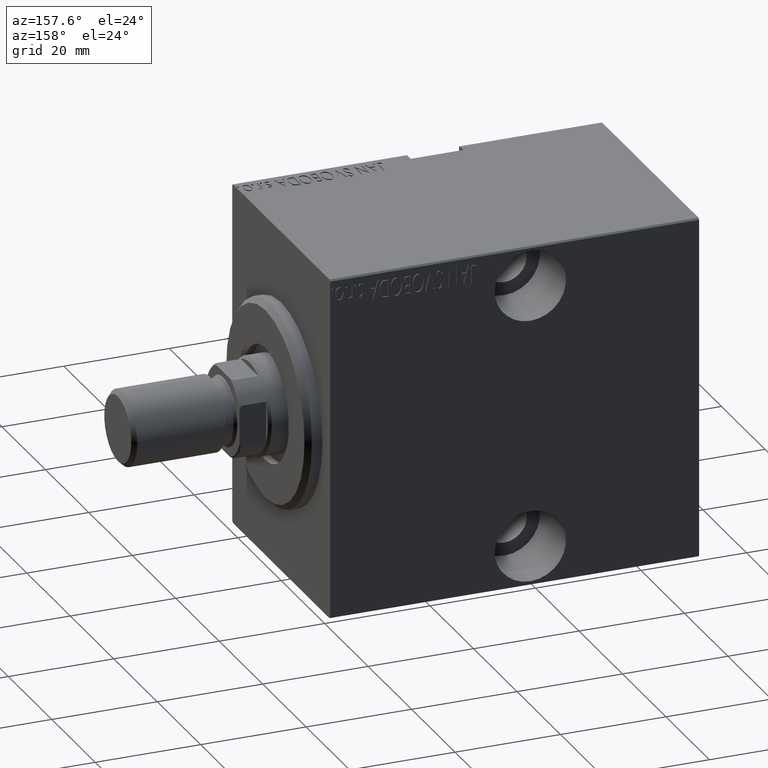
[diagram: clean part render]
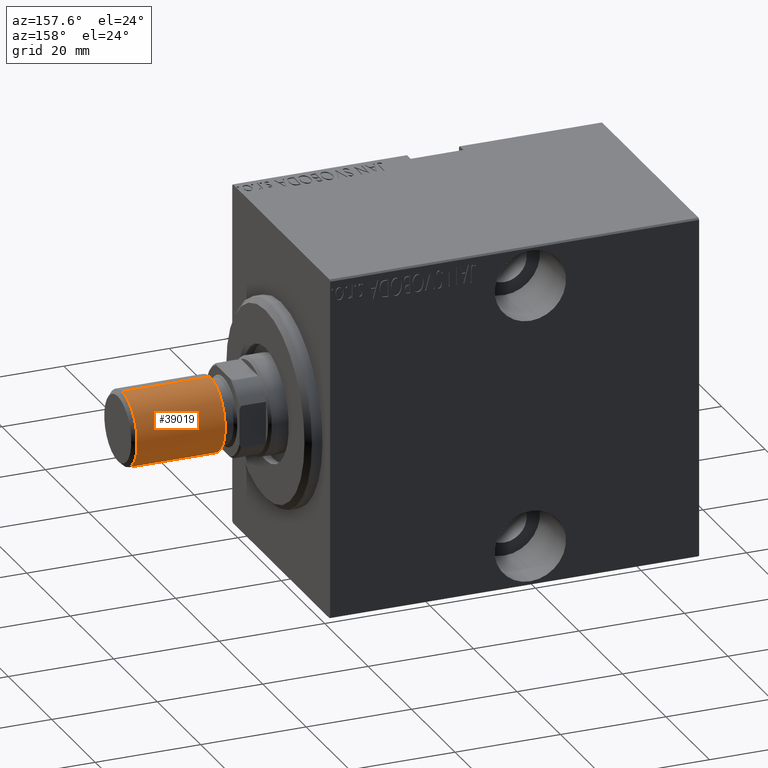
[diagram: same view with one face highlighted and labeled with its STEP entity id]
A machine part, auxiliary view. The second image highlights one B-rep face of the part: STEP entity #39019.
In plain terms, the highlighted cylindrical surface (partial cylindrical patch) has radius 7 mm, axis along (1, -0, -0).
Its self-contained STEP definition (entity closure, byte-faithful):
#57 = CIRCLE ( 'NONE', #4243, 7.000000000000000000 ) ;
#2053 = EDGE_LOOP ( 'NONE', ( #17106, #14158, #17116, #18461 ) ) ;
#2324 = CARTESIAN_POINT ( 'NONE',  ( 7.000000000000000000, 8.572527594031473190E-16, 0.7999999999999986011 ) ) ;
#3760 = CARTESIAN_POINT ( 'NONE',  ( 7.000000000000000000, 8.572527594031473190E-16, 17.50000000000000000 ) ) ;
#4243 = AXIS2_PLACEMENT_3D ( 'NONE', #33128, #15978, #6174 ) ;
#4304 = CIRCLE ( 'NONE', #8491, 7.000000000000000000 ) ;
#5177 = EDGE_CURVE ( 'NONE', #19580, #7536, #57, .T. ) ;
#6174 = DIRECTION ( 'NONE',  ( 1.000000000000000000, 0.000000000000000000, 0.000000000000000000 ) ) ;
#6366 = FACE_OUTER_BOUND ( 'NONE', #2053, .T. ) ;
#7536 = VERTEX_POINT ( 'NONE', #22222 ) ;
#8491 = AXIS2_PLACEMENT_3D ( 'NONE', #13162, #23366, #20327 ) ;
#8508 = EDGE_CURVE ( 'NONE', #19580, #40772, #33553, .T. ) ;
#8757 = CARTESIAN_POINT ( 'NONE',  ( 7.000000000000000000, 8.572527594031473190E-16, 17.50000000000000000 ) ) ;
#9335 = LINE ( 'NONE', #23179, #36406 ) ;
#10563 = VERTEX_POINT ( 'NONE', #19855 ) ;
#13162 = CARTESIAN_POINT ( 'NONE',  ( 0.000000000000000000, 0.000000000000000000, 0.7999999999999986011 ) ) ;
#13459 = EDGE_CURVE ( 'NONE', #40772, #10563, #4304, .T. ) ;
#14158 = ORIENTED_EDGE ( 'NONE', *, *, #8508, .T. ) ;
#15978 = DIRECTION ( 'NONE',  ( 0.000000000000000000, 0.000000000000000000, 1.000000000000000000 ) ) ;
#17106 = ORIENTED_EDGE ( 'NONE', *, *, #5177, .F. ) ;
#17116 = ORIENTED_EDGE ( 'NONE', *, *, #13459, .T. ) ;
#18119 = EDGE_CURVE ( 'NONE', #7536, #10563, #9335, .T. ) ;
#18461 = ORIENTED_EDGE ( 'NONE', *, *, #18119, .F. ) ;
#19580 = VERTEX_POINT ( 'NONE', #8757 ) ;
#19634 = CYLINDRICAL_SURFACE ( 'NONE', #20792, 7.000000000000000000 ) ;
#19855 = CARTESIAN_POINT ( 'NONE',  ( -7.000000000000000000, 0.000000000000000000, 0.7999999999999986011 ) ) ;
#20327 = DIRECTION ( 'NONE',  ( 1.000000000000000000, 0.000000000000000000, 0.000000000000000000 ) ) ;
#20792 = AXIS2_PLACEMENT_3D ( 'NONE', #30266, #34183, #40716 ) ;
#22222 = CARTESIAN_POINT ( 'NONE',  ( -7.000000000000000000, 0.000000000000000000, 17.50000000000000000 ) ) ;
#23179 = CARTESIAN_POINT ( 'NONE',  ( -7.000000000000000000, 0.000000000000000000, 17.50000000000000000 ) ) ;
#23366 = DIRECTION ( 'NONE',  ( -0.000000000000000000, -0.000000000000000000, 1.000000000000000000 ) ) ;
#27249 = VECTOR ( 'NONE', #29648, 1000.000000000000000 ) ;
#29648 = DIRECTION ( 'NONE',  ( -0.000000000000000000, -0.000000000000000000, -1.000000000000000000 ) ) ;
#30266 = CARTESIAN_POINT ( 'NONE',  ( 0.000000000000000000, 0.000000000000000000, 17.50000000000000000 ) ) ;
#33128 = CARTESIAN_POINT ( 'NONE',  ( 0.000000000000000000, 0.000000000000000000, 17.50000000000000000 ) ) ;
#33553 = LINE ( 'NONE', #3760, #27249 ) ;
#34183 = DIRECTION ( 'NONE',  ( -0.000000000000000000, -0.000000000000000000, -1.000000000000000000 ) ) ;
#36406 = VECTOR ( 'NONE', #36459, 1000.000000000000000 ) ;
#36459 = DIRECTION ( 'NONE',  ( -0.000000000000000000, -0.000000000000000000, -1.000000000000000000 ) ) ;
#39019 = ADVANCED_FACE ( 'NONE', ( #6366 ), #19634, .T. ) ;
#40716 = DIRECTION ( 'NONE',  ( -1.000000000000000000, 0.000000000000000000, 0.000000000000000000 ) ) ;
#40772 = VERTEX_POINT ( 'NONE', #2324 ) ;